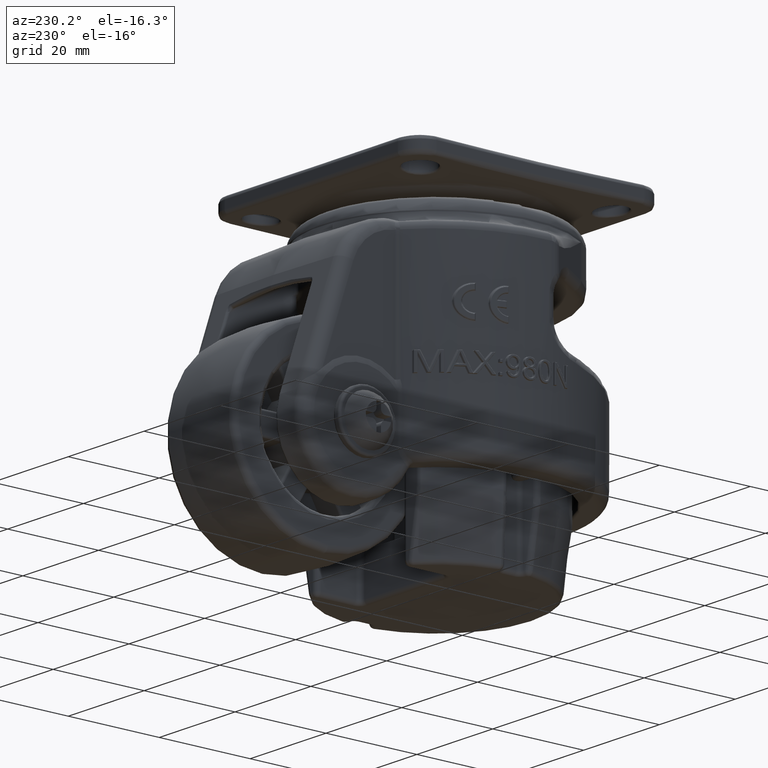
[diagram: clean part render]
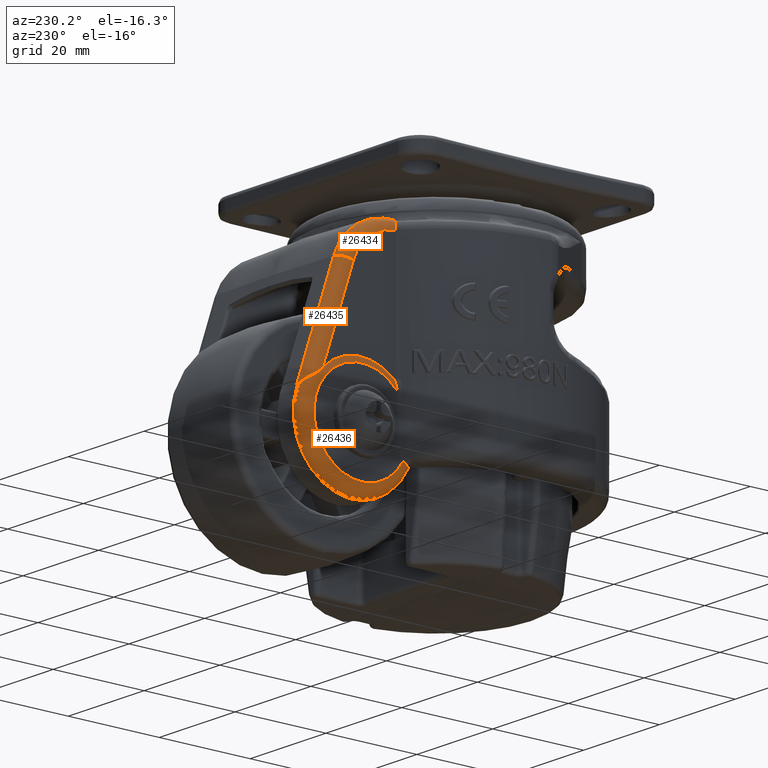
[diagram: same view with one multi-face feature highlighted, each face labeled with its STEP entity id]
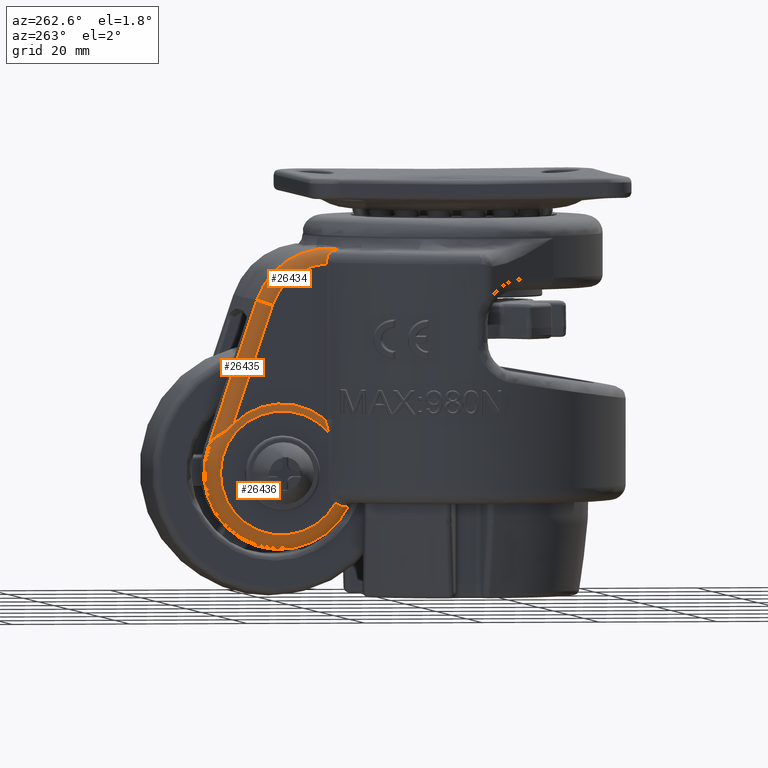
[diagram: same view with one multi-face feature highlighted, each face labeled with its STEP entity id]
A machine part, auxiliary view. The highlighted faces form ONE feature: a constant-radius fillet chain: 3 tangent blend faces with common blend radius 2.5 mm. The faces share edges in the B-rep.
A second angle (auxiliary view) of the same feature is appended — it is thin or edge-on in the first view.
Their STEP definitions:
[1] entity #26436 (Torus):
#808=TOROIDAL_SURFACE('',#28807,10.4876527881421,2.5);
#1341=ELLIPSE('',#28808,7.32003589672251,3.11500899823392);
#2505=B_SPLINE_CURVE_WITH_KNOTS('',3,(#67632,#67633,#67634,#67635,#67636,
#67637,#67638,#67639,#67640,#67641,#67642,#67643,#67644,#67645,#67646,#67647),
 .UNSPECIFIED.,.F.,.F.,(4,2,2,2,2,2,2,4),(2.62298406506864,2.62540183178831,
2.69438704258497,2.80573982525515,2.96957312129336,3.04864523480397,3.09267627405801,
3.12739493921407),.UNSPECIFIED.);
#2506=B_SPLINE_CURVE_WITH_KNOTS('',3,(#67649,#67650,#67651,#67652,#67653,
#67654,#67655,#67656,#67657,#67658,#67659,#67660,#67661),.UNSPECIFIED.,
 .F.,.F.,(4,3,3,3,4),(0.,0.263021618415531,0.525507598075942,0.785289959699708,
1.),.UNSPECIFIED.);
#2507=B_SPLINE_CURVE_WITH_KNOTS('',3,(#67665,#67666,#67667,#67668,#67669,
#67670,#67671,#67672,#67673,#67674),.UNSPECIFIED.,.F.,.F.,(4,3,3,4),(0.,
0.0688259526320415,0.530497821950617,1.),.UNSPECIFIED.);
#2508=B_SPLINE_CURVE_WITH_KNOTS('',3,(#67675,#67676,#67677,#67678,#67679,
#67680,#67681,#67682,#67683,#67684,#67685,#67686,#67687,#67688,#67689,#67690,
#67691,#67692,#67693,#67694,#67695,#67696,#67697,#67698,#67699,#67700,#67701,
#67702,#67703,#67704,#67705,#67706,#67707,#67708,#67709,#67710,#67711,#67712,
#67713,#67714,#67715,#67716,#67717,#67718,#67719,#67720,#67721,#67722,#67723),
 .UNSPECIFIED.,.F.,.F.,(4,3,3,3,3,3,3,3,3,3,3,3,3,3,3,3,4),(0.,0.0713923453421677,
0.143332131950835,0.215827094337618,0.269600432878373,0.288447929116021,
0.30092448128321,0.376129885576939,0.452284679941225,0.528980811998767,
0.60644008331806,0.646013802663653,0.727444843513708,0.809193979855126,
0.890932062540481,0.972500505810279,1.),.UNSPECIFIED.);
#6884=FACE_OUTER_BOUND('',#8597,.T.);
#8597=EDGE_LOOP('',(#14683,#14684,#14685,#14686,#14687,#14688,#14689,#14690));
#14683=ORIENTED_EDGE('',*,*,#20092,.F.);
#14684=ORIENTED_EDGE('',*,*,#20121,.T.);
#14685=ORIENTED_EDGE('',*,*,#20060,.F.);
#14686=ORIENTED_EDGE('',*,*,#20120,.F.);
#14687=ORIENTED_EDGE('',*,*,#20098,.F.);
#14688=ORIENTED_EDGE('',*,*,#20122,.T.);
#14689=ORIENTED_EDGE('',*,*,#20123,.T.);
#14690=ORIENTED_EDGE('',*,*,#20124,.T.);
#20060=EDGE_CURVE('',#23168,#23169,#24740,.T.);
#20092=EDGE_CURVE('',#23196,#23197,#24747,.T.);
#20098=EDGE_CURVE('',#23202,#23203,#24749,.T.);
#20120=EDGE_CURVE('',#23203,#23168,#2505,.T.);
#20121=EDGE_CURVE('',#23196,#23169,#2506,.T.);
#20122=EDGE_CURVE('',#23202,#23219,#1341,.T.);
#20123=EDGE_CURVE('',#23219,#23220,#2507,.T.);
#20124=EDGE_CURVE('',#23220,#23197,#2508,.T.);
#23168=VERTEX_POINT('',#67225);
#23169=VERTEX_POINT('',#67226);
#23196=VERTEX_POINT('',#67402);
#23197=VERTEX_POINT('',#67403);
#23202=VERTEX_POINT('',#67432);
#23203=VERTEX_POINT('',#67443);
#23219=VERTEX_POINT('',#67662);
#23220=VERTEX_POINT('',#67664);
#24740=CIRCLE('',#28774,11.6750869968459);
#24747=CIRCLE('',#28790,10.4876527881421);
#24749=CIRCLE('',#28793,12.986796100581);
#26436=ADVANCED_FACE('',(#6884),#808,.T.);
#28774=AXIS2_PLACEMENT_3D('',#67227,#33813,#33814);
#28790=AXIS2_PLACEMENT_3D('',#67404,#33860,#33861);
#28793=AXIS2_PLACEMENT_3D('',#67444,#33867,#33868);
#28807=AXIS2_PLACEMENT_3D('',#67648,#33905,#33906);
#28808=AXIS2_PLACEMENT_3D('',#67663,#33907,#33908);
#33813=DIRECTION('center_axis',(1.,0.,0.));
#33814=DIRECTION('ref_axis',(0.,0.,-1.));
#33860=DIRECTION('center_axis',(-1.,0.,0.));
#33861=DIRECTION('ref_axis',(0.,0.,-1.));
#33867=DIRECTION('center_axis',(1.,0.,0.));
#33868=DIRECTION('ref_axis',(0.,0.,1.));
#33905=DIRECTION('center_axis',(1.,0.,0.));
#33906=DIRECTION('ref_axis',(0.,0.991057146478216,-0.133438122043352));
#33907=DIRECTION('center_axis',(0.0748446968973447,0.930099643403775,-0.359601063244418));
#33908=DIRECTION('ref_axis',(0.480720535287132,0.28229096034836,0.83019249614704));
#67225=CARTESIAN_POINT('',(-6.6732984111631,32.9414004631349,-22.7100292255762));
#67226=CARTESIAN_POINT('',(-6.67329845169217,17.3694427807741,-21.7393305217223));
#67227=CARTESIAN_POINT('Origin',(-6.6732984111631,24.6150030360456,-30.8940845937956));
#67402=CARTESIAN_POINT('',(-6.9732984111631,16.7417571050433,-23.9656749989042));
#67403=CARTESIAN_POINT('',(-6.9732984111631,15.4428045276084,-35.9795182553872));
#67404=CARTESIAN_POINT('Origin',(-6.9732984111631,24.6150030360456,-30.8940845937956));
#67432=CARTESIAN_POINT('',(-4.53874078193276,12.9436370142948,-36.5893535202281));
#67443=CARTESIAN_POINT('',(-4.53874078193278,36.6933744856178,-26.1223117488012));
#67444=CARTESIAN_POINT('Origin',(-4.53874078193276,24.6150030360456,-30.8940845937956));
#67632=CARTESIAN_POINT('Ctrl Pts',(-4.53874078193276,36.6933744856178,-26.1223117488012));
#67633=CARTESIAN_POINT('Ctrl Pts',(-4.54176153533338,36.6907462640113,-26.1158744420588));
#67634=CARTESIAN_POINT('Ctrl Pts',(-4.54482227493115,36.6881104674077,-26.109450921754));
#67635=CARTESIAN_POINT('Ctrl Pts',(-4.63637825263272,36.6100339849611,-25.9201576049832));
#67636=CARTESIAN_POINT('Ctrl Pts',(-4.75426956387215,36.530053190774,-25.7536220047788));
#67637=CARTESIAN_POINT('Ctrl Pts',(-5.09921420555006,36.2880016521293,-25.3543620559092));
#67638=CARTESIAN_POINT('Ctrl Pts',(-5.35048967738592,36.1059219417405,-25.1425912430851));
#67639=CARTESIAN_POINT('Ctrl Pts',(-5.98259029799215,35.4641797950515,-24.6191946767509));
#67640=CARTESIAN_POINT('Ctrl Pts',(-6.27153524372343,35.0069574774129,-24.3800720968052));
#67641=CARTESIAN_POINT('Ctrl Pts',(-6.53844691048796,34.1984988159915,-23.8268983906551));
#67642=CARTESIAN_POINT('Ctrl Pts',(-6.59218048737017,33.9417976293568,-23.6317799023337));
#67643=CARTESIAN_POINT('Ctrl Pts',(-6.64503913377723,33.5446398303919,-23.2909183080655));
#67644=CARTESIAN_POINT('Ctrl Pts',(-6.65743838660135,33.4043295673264,-23.1629623886292));
#67645=CARTESIAN_POINT('Ctrl Pts',(-6.67060042011582,33.1572779563852,-22.9267989530027));
#67646=CARTESIAN_POINT('Ctrl Pts',(-6.6732984111631,33.048772759982,-22.8192690065875));
#67647=CARTESIAN_POINT('Ctrl Pts',(-6.6732984111631,32.9414004631349,-22.7100292255762));
#67648=CARTESIAN_POINT('Origin',(-4.4732984111631,24.6150030360456,-30.8940845937956));
#67649=CARTESIAN_POINT('Ctrl Pts',(-6.9732984111631,16.7417571050433,-23.9656749989042));
#67650=CARTESIAN_POINT('Ctrl Pts',(-6.97329841116309,16.7747906813799,-23.7616171919339));
#67651=CARTESIAN_POINT('Ctrl Pts',(-6.9660646747803,16.8138876672459,-23.5595278233601));
#67652=CARTESIAN_POINT('Ctrl Pts',(-6.95201335462044,16.8588374993883,-23.359703431489));
#67653=CARTESIAN_POINT('Ctrl Pts',(-6.93799064971923,16.9036957920129,-23.1602859783674));
#67654=CARTESIAN_POINT('Ctrl Pts',(-6.91717752313979,16.9543736096265,-22.9631162896734));
#67655=CARTESIAN_POINT('Ctrl Pts',(-6.88965918294602,17.0106285823867,-22.7684492285111));
#67656=CARTESIAN_POINT('Ctrl Pts',(-6.86242428296107,17.06630412626,-22.5757872473092));
#67657=CARTESIAN_POINT('Ctrl Pts',(-6.82861720714476,17.1274369380578,-22.385568095251));
#67658=CARTESIAN_POINT('Ctrl Pts',(-6.78803728834302,17.1938706716452,-22.1981231214393));
#67659=CARTESIAN_POINT('Ctrl Pts',(-6.75449799819705,17.2487781315925,-22.043199909449));
#67660=CARTESIAN_POINT('Ctrl Pts',(-6.71632483936822,17.307307628008,-21.8901708436959));
#67661=CARTESIAN_POINT('Ctrl Pts',(-6.67329838783339,17.3694429883345,-21.7393308020099));
#67662=CARTESIAN_POINT('',(-4.63607129240608,12.9501953824997,-36.5926481062225));
#67663=CARTESIAN_POINT('Origin',(-1.795129599156,15.1264626134972,-30.3724918718231));
#67664=CARTESIAN_POINT('',(-6.17557799367588,13.743146174721,-36.6863038263022));
#67665=CARTESIAN_POINT('Ctrl Pts',(-4.63607129240608,12.9501953824997,-36.5926481062225));
#67666=CARTESIAN_POINT('Ctrl Pts',(-4.6771854010511,12.953353594132,-36.5930014452756));
#67667=CARTESIAN_POINT('Ctrl Pts',(-4.71822390734771,12.9577094242802,-36.5934889691284));
#67668=CARTESIAN_POINT('Ctrl Pts',(-4.75908243746982,12.963246969276,-36.5941096063453));
#67669=CARTESIAN_POINT('Ctrl Pts',(-5.02835757199567,12.9997417518648,-36.5981998702281));
#67670=CARTESIAN_POINT('Ctrl Pts',(-5.29447160768163,13.0902462648018,-36.6083310737564));
#67671=CARTESIAN_POINT('Ctrl Pts',(-5.53167027598985,13.2220056924344,-36.6236262518031));
#67672=CARTESIAN_POINT('Ctrl Pts',(-5.77336074032736,13.3562602288215,-36.6392110723697));
#67673=CARTESIAN_POINT('Ctrl Pts',(-5.99270271089124,13.536802552594,-36.6606058054014));
#67674=CARTESIAN_POINT('Ctrl Pts',(-6.17557799367588,13.743146174721,-36.6863038263022));
#67675=CARTESIAN_POINT('Ctrl Pts',(-6.17557799367584,13.743146174721,-36.6863038263022));
#67676=CARTESIAN_POINT('Ctrl Pts',(-6.20864227546689,13.7804535871147,-36.6909500882152));
#67677=CARTESIAN_POINT('Ctrl Pts',(-6.24135145446202,13.81848485289,-36.6939774725232));
#67678=CARTESIAN_POINT('Ctrl Pts',(-6.27350070538122,13.8571106488753,-36.6953151823835));
#67679=CARTESIAN_POINT('Ctrl Pts',(-6.30589647890106,13.8960326300408,-36.6966631498922));
#67680=CARTESIAN_POINT('Ctrl Pts',(-6.33772342207643,13.9355583101488,-36.6962954002827));
#67681=CARTESIAN_POINT('Ctrl Pts',(-6.36878389113557,13.9755456333411,-36.6941881047494));
#67682=CARTESIAN_POINT('Ctrl Pts',(-6.40008406093461,14.0158415478472,-36.6920645467348));
#67683=CARTESIAN_POINT('Ctrl Pts',(-6.43060552547958,14.0566062366822,-36.6881745375919));
#67684=CARTESIAN_POINT('Ctrl Pts',(-6.46016293412328,14.0976844988226,-36.6825427538957));
#67685=CARTESIAN_POINT('Ctrl Pts',(-6.48208722360569,14.1281544132003,-36.6783653627873));
#67686=CARTESIAN_POINT('Ctrl Pts',(-6.50348140908306,14.1587966368706,-36.6732306939036));
#67687=CARTESIAN_POINT('Ctrl Pts',(-6.52427761742679,14.1895446090023,-36.6671655955718));
#67688=CARTESIAN_POINT('Ctrl Pts',(-6.5315666656643,14.200321739543,-36.6650397852522));
#67689=CARTESIAN_POINT('Ctrl Pts',(-6.53878231921699,14.2111118383596,-36.6627997967015));
#67690=CARTESIAN_POINT('Ctrl Pts',(-6.54592188115088,14.2219119689097,-36.660447182524));
#67691=CARTESIAN_POINT('Ctrl Pts',(-6.55064808540612,14.2290613743544,-36.6588898131449));
#67692=CARTESIAN_POINT('Ctrl Pts',(-6.55534377463578,14.2362194185952,-36.6572821977546));
#67693=CARTESIAN_POINT('Ctrl Pts',(-6.56001207799714,14.2433915012143,-36.6556231317159));
#67694=CARTESIAN_POINT('Ctrl Pts',(-6.58815139380752,14.2866229457486,-36.6456227140913));
#67695=CARTESIAN_POINT('Ctrl Pts',(-6.61524829475832,14.3302968553699,-36.6337637966704));
#67696=CARTESIAN_POINT('Ctrl Pts',(-6.64111010552835,14.3742414367225,-36.620103323594));
#67697=CARTESIAN_POINT('Ctrl Pts',(-6.66729839478197,14.4187407727444,-36.6062704012419));
#67698=CARTESIAN_POINT('Ctrl Pts',(-6.69221967243686,14.4635174662849,-36.5905903314527));
#67699=CARTESIAN_POINT('Ctrl Pts',(-6.71570472873819,14.5083836114997,-36.5731707944465));
#67700=CARTESIAN_POINT('Ctrl Pts',(-6.73935672589085,14.5535686826043,-36.5556274326429));
#67701=CARTESIAN_POINT('Ctrl Pts',(-6.76155152901431,14.598844177001,-36.5363201335215));
#67702=CARTESIAN_POINT('Ctrl Pts',(-6.78215517299705,14.6440123296702,-36.5154037539748));
#67703=CARTESIAN_POINT('Ctrl Pts',(-6.80296382666199,14.6896299129659,-36.4942792529751));
#67704=CARTESIAN_POINT('Ctrl Pts',(-6.82214909006136,14.7351376153094,-36.4715139295091));
#67705=CARTESIAN_POINT('Ctrl Pts',(-6.83961932230953,14.7803310969492,-36.4473069627606));
#67706=CARTESIAN_POINT('Ctrl Pts',(-6.84854481381127,14.8034203169767,-36.4349396929425));
#67707=CARTESIAN_POINT('Ctrl Pts',(-6.85702343758959,14.8264275475561,-36.4221967248869));
#67708=CARTESIAN_POINT('Ctrl Pts',(-6.86504801941375,14.8493260077179,-36.4091079488884));
#67709=CARTESIAN_POINT('Ctrl Pts',(-6.88156024169493,14.8964442840809,-36.382175108846));
#67710=CARTESIAN_POINT('Ctrl Pts',(-6.8962809785497,14.943484103716,-36.3535573271938));
#67711=CARTESIAN_POINT('Ctrl Pts',(-6.90910947496947,14.9902367357117,-36.3234458246712));
#67712=CARTESIAN_POINT('Ctrl Pts',(-6.92198808356795,15.037171998327,-36.2932166970624));
#67713=CARTESIAN_POINT('Ctrl Pts',(-6.93295949328862,15.0838173228195,-36.261482706852));
#67714=CARTESIAN_POINT('Ctrl Pts',(-6.94197450414941,15.1299710734959,-36.2284675336941));
#67715=CARTESIAN_POINT('Ctrl Pts',(-6.9509882960514,15.1761185835231,-36.1954568246613));
#67716=CARTESIAN_POINT('Ctrl Pts',(-6.95804630478741,15.2217742192283,-36.1611658343153));
#67717=CARTESIAN_POINT('Ctrl Pts',(-6.96315235303762,15.2667530424131,-36.1258399028038));
#67718=CARTESIAN_POINT('Ctrl Pts',(-6.96824780418287,15.3116385164389,-36.0905872868164));
#67719=CARTESIAN_POINT('Ctrl Pts',(-6.97139965242745,15.3558496851794,-36.0543045116493));
#67720=CARTESIAN_POINT('Ctrl Pts',(-6.97266178061443,15.3992248298339,-36.0172491794292));
#67721=CARTESIAN_POINT('Ctrl Pts',(-6.97308728691752,15.4138480651267,-36.004756567676));
#67722=CARTESIAN_POINT('Ctrl Pts',(-6.9732984111631,15.4283764826619,-35.9921762315711));
#67723=CARTESIAN_POINT('Ctrl Pts',(-6.9732984111631,15.4428045276084,-35.9795182553872));
[2] entity #26435 (Cylinder):
#2500=B_SPLINE_CURVE_WITH_KNOTS('',3,(#67445,#67446,#67447,#67448,#67449,
#67450,#67451),.UNSPECIFIED.,.F.,.F.,(4,3,4),(0.,0.504752494202908,1.),
 .UNSPECIFIED.);
#2505=B_SPLINE_CURVE_WITH_KNOTS('',3,(#67632,#67633,#67634,#67635,#67636,
#67637,#67638,#67639,#67640,#67641,#67642,#67643,#67644,#67645,#67646,#67647),
 .UNSPECIFIED.,.F.,.F.,(4,2,2,2,2,2,2,4),(2.62298406506864,2.62540183178831,
2.69438704258497,2.80573982525515,2.96957312129336,3.04864523480397,3.09267627405801,
3.12739493921407),.UNSPECIFIED.);
#3811=LINE('',#67241,#4775);
#3822=LINE('',#67356,#4786);
#4775=VECTOR('',#33818,21.2603998477585);
#4786=VECTOR('',#33851,26.3742981997066);
#5327=CYLINDRICAL_SURFACE('',#28806,2.5);
#6883=FACE_OUTER_BOUND('',#8596,.T.);
#8596=EDGE_LOOP('',(#14678,#14679,#14680,#14681,#14682));
#14678=ORIENTED_EDGE('',*,*,#20119,.T.);
#14679=ORIENTED_EDGE('',*,*,#20086,.F.);
#14680=ORIENTED_EDGE('',*,*,#20099,.F.);
#14681=ORIENTED_EDGE('',*,*,#20120,.T.);
#14682=ORIENTED_EDGE('',*,*,#20064,.F.);
#20064=EDGE_CURVE('',#23172,#23168,#3811,.T.);
#20086=EDGE_CURVE('',#23192,#23193,#3822,.T.);
#20099=EDGE_CURVE('',#23203,#23192,#2500,.T.);
#20119=EDGE_CURVE('',#23172,#23193,#24753,.T.);
#20120=EDGE_CURVE('',#23203,#23168,#2505,.T.);
#23168=VERTEX_POINT('',#67225);
#23172=VERTEX_POINT('',#67239);
#23192=VERTEX_POINT('',#67353);
#23193=VERTEX_POINT('',#67355);
#23203=VERTEX_POINT('',#67443);
#24753=CIRCLE('',#28805,2.5);
#26435=ADVANCED_FACE('',(#6883),#5327,.T.);
#28805=AXIS2_PLACEMENT_3D('',#67630,#33901,#33902);
#28806=AXIS2_PLACEMENT_3D('',#67631,#33903,#33904);
#33818=DIRECTION('',(0.,0.317777256828142,-0.948165394349942));
#33851=DIRECTION('',(-5.94446409531362E-22,-0.317777256828142,0.948165394349942));
#33901=DIRECTION('center_axis',(0.,0.317777256828142,-0.948165394349942));
#33902=DIRECTION('ref_axis',(0.,0.948165394349942,0.317777256828142));
#33903=DIRECTION('center_axis',(0.,-0.317777256828142,0.948165394349942));
#33904=DIRECTION('ref_axis',(0.,-0.948165394349942,-0.317777256828142));
#67225=CARTESIAN_POINT('',(-6.6732984111631,32.9414004631349,-22.7100292255762));
#67239=CARTESIAN_POINT('',(-6.6732984111631,26.1853289204448,-2.55165381988885));
#67241=CARTESIAN_POINT('',(-6.6732984111631,25.8262109865619,-1.48013850505189));
#67353=CARTESIAN_POINT('',(-4.23874078193278,36.9360822574906,-26.7646797668694));
#67355=CARTESIAN_POINT('',(-4.23874078193278,28.5549301248205,-1.75748291364163));
#67356=CARTESIAN_POINT('',(-4.23874078193278,26.8233282104107,3.40917069908479));
#67443=CARTESIAN_POINT('',(-4.53874078193278,36.6933744856178,-26.1223117488012));
#67445=CARTESIAN_POINT('Ctrl Pts',(-4.53874078193276,36.6933744856178,-26.1223117488012));
#67446=CARTESIAN_POINT('Ctrl Pts',(-4.48852548122426,36.7370645591844,-26.2293219051944));
#67447=CARTESIAN_POINT('Ctrl Pts',(-4.43799138874231,36.7794398085257,-26.337192301853));
#67448=CARTESIAN_POINT('Ctrl Pts',(-4.38742208744593,36.8203035840251,-26.4454392427187));
#67449=CARTESIAN_POINT('Ctrl Pts',(-4.33780505607992,36.8603978542387,-26.5516477866874));
#67450=CARTESIAN_POINT('Ctrl Pts',(-4.28815460065304,36.8990372114972,-26.658218767743));
#67451=CARTESIAN_POINT('Ctrl Pts',(-4.23874078193278,36.9360822574906,-26.7646797668694));
#67630=CARTESIAN_POINT('Origin',(-4.1732984111631,26.1853289204448,-2.55165381988885));
#67631=CARTESIAN_POINT('Origin',(-4.1732984111631,25.8262109865619,-1.48013850505189));
#67632=CARTESIAN_POINT('Ctrl Pts',(-4.53874078193276,36.6933744856178,-26.1223117488012));
#67633=CARTESIAN_POINT('Ctrl Pts',(-4.54176153533338,36.6907462640113,-26.1158744420588));
#67634=CARTESIAN_POINT('Ctrl Pts',(-4.54482227493115,36.6881104674077,-26.109450921754));
#67635=CARTESIAN_POINT('Ctrl Pts',(-4.63637825263272,36.6100339849611,-25.9201576049832));
#67636=CARTESIAN_POINT('Ctrl Pts',(-4.75426956387215,36.530053190774,-25.7536220047788));
#67637=CARTESIAN_POINT('Ctrl Pts',(-5.09921420555006,36.2880016521293,-25.3543620559092));
#67638=CARTESIAN_POINT('Ctrl Pts',(-5.35048967738592,36.1059219417405,-25.1425912430851));
#67639=CARTESIAN_POINT('Ctrl Pts',(-5.98259029799215,35.4641797950515,-24.6191946767509));
#67640=CARTESIAN_POINT('Ctrl Pts',(-6.27153524372343,35.0069574774129,-24.3800720968052));
#67641=CARTESIAN_POINT('Ctrl Pts',(-6.53844691048796,34.1984988159915,-23.8268983906551));
#67642=CARTESIAN_POINT('Ctrl Pts',(-6.59218048737017,33.9417976293568,-23.6317799023337));
#67643=CARTESIAN_POINT('Ctrl Pts',(-6.64503913377723,33.5446398303919,-23.2909183080655));
#67644=CARTESIAN_POINT('Ctrl Pts',(-6.65743838660135,33.4043295673264,-23.1629623886292));
#67645=CARTESIAN_POINT('Ctrl Pts',(-6.67060042011582,33.1572779563852,-22.9267989530027));
#67646=CARTESIAN_POINT('Ctrl Pts',(-6.6732984111631,33.048772759982,-22.8192690065875));
#67647=CARTESIAN_POINT('Ctrl Pts',(-6.6732984111631,32.9414004631349,-22.7100292255762));
[3] entity #26434 (Torus):
#807=TOROIDAL_SURFACE('',#28803,10.2696156405994,2.5);
#2503=B_SPLINE_CURVE_WITH_KNOTS('',3,(#67592,#67593,#67594,#67595,#67596,
#67597,#67598,#67599,#67600,#67601,#67602,#67603,#67604,#67605,#67606,#67607),
 .UNSPECIFIED.,.F.,.F.,(4,3,3,3,3,4),(0.,0.200821826464369,0.406158303396847,
0.626878103218087,0.817255075358532,1.),.UNSPECIFIED.);
#2504=B_SPLINE_CURVE_WITH_KNOTS('',3,(#67608,#67609,#67610,#67611,#67612,
#67613,#67614,#67615,#67616,#67617,#67618,#67619,#67620,#67621,#67622,#67623,
#67624,#67625,#67626,#67627,#67628,#67629),.UNSPECIFIED.,.F.,.F.,(4,3,3,
3,3,3,3,4),(0.,0.100673249905794,0.181323915829313,0.194834026222944,0.281066858740336,
0.415172328830206,0.549932100668958,1.),.UNSPECIFIED.);
#6882=FACE_OUTER_BOUND('',#8595,.T.);
#8595=EDGE_LOOP('',(#14672,#14673,#14674,#14675,#14676,#14677));
#14672=ORIENTED_EDGE('',*,*,#20063,.F.);
#14673=ORIENTED_EDGE('',*,*,#20116,.T.);
#14674=ORIENTED_EDGE('',*,*,#20117,.T.);
#14675=ORIENTED_EDGE('',*,*,#20118,.T.);
#14676=ORIENTED_EDGE('',*,*,#20090,.F.);
#14677=ORIENTED_EDGE('',*,*,#20119,.F.);
#20063=EDGE_CURVE('',#23171,#23172,#24741,.T.);
#20090=EDGE_CURVE('',#23193,#23195,#24746,.T.);
#20116=EDGE_CURVE('',#23171,#23217,#24752,.T.);
#20117=EDGE_CURVE('',#23217,#23218,#2503,.T.);
#20118=EDGE_CURVE('',#23218,#23195,#2504,.T.);
#20119=EDGE_CURVE('',#23172,#23193,#24753,.T.);
#23171=VERTEX_POINT('',#67237);
#23172=VERTEX_POINT('',#67239);
#23193=VERTEX_POINT('',#67355);
#23195=VERTEX_POINT('',#67365);
#23217=VERTEX_POINT('',#67589);
#23218=VERTEX_POINT('',#67591);
#24741=CIRCLE('',#28775,10.2696156405994);
#24746=CIRCLE('',#28788,12.7687589530383);
#24752=CIRCLE('',#28804,1.67808800859409);
#24753=CIRCLE('',#28805,2.5);
#26434=ADVANCED_FACE('',(#6882),#807,.T.);
#28775=AXIS2_PLACEMENT_3D('',#67240,#33816,#33817);
#28788=AXIS2_PLACEMENT_3D('',#67366,#33856,#33857);
#28803=AXIS2_PLACEMENT_3D('',#67588,#33897,#33898);
#28804=AXIS2_PLACEMENT_3D('',#67590,#33899,#33900);
#28805=AXIS2_PLACEMENT_3D('',#67630,#33901,#33902);
#33816=DIRECTION('center_axis',(-1.,0.,0.));
#33817=DIRECTION('ref_axis',(0.,0.,-1.));
#33856=DIRECTION('center_axis',(1.,0.,0.));
#33857=DIRECTION('ref_axis',(0.,0.,1.));
#33897=DIRECTION('center_axis',(1.,0.,0.));
#33898=DIRECTION('ref_axis',(0.,0.534066842228005,0.845442255883042));
#33899=DIRECTION('center_axis',(-0.741488370534295,0.670823016605393,0.0138375125957336));
#33900=DIRECTION('ref_axis',(-0.669099592576701,-0.740805899797838,0.0592651165392264));
#33901=DIRECTION('center_axis',(0.,0.317777256828142,-0.948165394349942));
#33902=DIRECTION('ref_axis',(0.,0.948165394349942,0.317777256828142));
#67237=CARTESIAN_POINT('',(-6.6732984111631,16.9807878186695,4.44068350702765));
#67239=CARTESIAN_POINT('',(-6.6732984111631,26.1853289204448,-2.55165381988885));
#67240=CARTESIAN_POINT('Origin',(-6.6732984111631,16.4480347567526,-5.81510410683514));
#67355=CARTESIAN_POINT('',(-4.23874078193278,28.5549301248205,-1.75748291364163));
#67365=CARTESIAN_POINT('',(-4.23874078193274,15.2262065805529,6.89506273347972));
#67366=CARTESIAN_POINT('Origin',(-4.23874078193274,16.4480347567526,-5.81510410683514));
#67588=CARTESIAN_POINT('Origin',(-4.1732984111631,16.4480347567526,-5.81510410683514));
#67589=CARTESIAN_POINT('',(-6.67016688840529,16.9816663743802,4.56589620713435));
#67590=CARTESIAN_POINT('Origin',(-5.54735888554714,18.2248038715267,4.46644412574194));
#67591=CARTESIAN_POINT('',(-5.13674893744788,15.1467001246568,6.69389825633852));
#67592=CARTESIAN_POINT('Ctrl Pts',(-6.67016688840529,16.9816663743802,4.56589620713435));
#67593=CARTESIAN_POINT('Ctrl Pts',(-6.65827677182646,16.9898983629712,4.80311771298087));
#67594=CARTESIAN_POINT('Ctrl Pts',(-6.61080590877987,16.9646431153139,5.04339551251637));
#67595=CARTESIAN_POINT('Ctrl Pts',(-6.53576183032314,16.9116941721771,5.2625940048784));
#67596=CARTESIAN_POINT('Ctrl Pts',(-6.4588797248995,16.8574483700827,5.48716124515971));
#67597=CARTESIAN_POINT('Ctrl Pts',(-6.35110975745564,16.7728414711187,5.69712276223134));
#67598=CARTESIAN_POINT('Ctrl Pts',(-6.2275192911208,16.6654470555441,5.87733304695822));
#67599=CARTESIAN_POINT('Ctrl Pts',(-6.094699879089,16.5500331117739,6.07100028335055));
#67600=CARTESIAN_POINT('Ctrl Pts',(-5.9394740850928,16.4051129437711,6.23640359567135));
#67601=CARTESIAN_POINT('Ctrl Pts',(-5.7853094849157,16.236179536486,6.36353798533909));
#67602=CARTESIAN_POINT('Ctrl Pts',(-5.65201005591222,16.0901101619029,6.47346556618415));
#67603=CARTESIAN_POINT('Ctrl Pts',(-5.51620274242018,15.9219321281945,6.55755376734093));
#67604=CARTESIAN_POINT('Ctrl Pts',(-5.40064218791908,15.7352168000505,6.61207181456989));
#67605=CARTESIAN_POINT('Ctrl Pts',(-5.28995197509731,15.5563706574495,6.66429217883219));
#67606=CARTESIAN_POINT('Ctrl Pts',(-5.19704444215126,15.3548256754983,6.69023225293255));
#67607=CARTESIAN_POINT('Ctrl Pts',(-5.13674893744788,15.1467001246568,6.69389825633852));
#67608=CARTESIAN_POINT('Ctrl Pts',(-5.13674893744788,15.1467001246568,6.69389825633852));
#67609=CARTESIAN_POINT('Ctrl Pts',(-5.12641048788781,15.1110142883827,6.69452684036897));
#67610=CARTESIAN_POINT('Ctrl Pts',(-5.1117546470288,15.0759624777491,6.69681638371708));
#67611=CARTESIAN_POINT('Ctrl Pts',(-5.09171334805599,15.0449962989256,6.70131078827407));
#67612=CARTESIAN_POINT('Ctrl Pts',(-5.07565763051877,15.0201883151181,6.70491139770377));
#67613=CARTESIAN_POINT('Ctrl Pts',(-5.05564874048357,14.9975550945461,6.71005849731201));
#67614=CARTESIAN_POINT('Ctrl Pts',(-5.03270498001307,14.9796865560942,6.71642133500907));
#67615=CARTESIAN_POINT('Ctrl Pts',(-5.02880246711452,14.9766472896289,6.71750359248016));
#67616=CARTESIAN_POINT('Ctrl Pts',(-5.02480944961311,14.9737328694071,6.71862170733885));
#67617=CARTESIAN_POINT('Ctrl Pts',(-5.02073709293128,14.9709522352615,6.7197714958451));
#67618=CARTESIAN_POINT('Ctrl Pts',(-4.99520099073986,14.9535160028182,6.72698135467817));
#67619=CARTESIAN_POINT('Ctrl Pts',(-4.96595837177511,14.9413443608328,6.73561492750034));
#67620=CARTESIAN_POINT('Ctrl Pts',(-4.93619719584048,14.9346384705894,6.74441266723118));
#67621=CARTESIAN_POINT('Ctrl Pts',(-4.89018745099832,14.9242713970665,6.75801366744341));
#67622=CARTESIAN_POINT('Ctrl Pts',(-4.84139878385785,14.9259567126171,6.77238026257367));
#67623=CARTESIAN_POINT('Ctrl Pts',(-4.79476292119901,14.9340108675843,6.78540281771749));
#67624=CARTESIAN_POINT('Ctrl Pts',(-4.747523463939,14.9421692651702,6.79859392005931));
#67625=CARTESIAN_POINT('Ctrl Pts',(-4.70104079108526,14.9568503946721,6.81086689432816));
#67626=CARTESIAN_POINT('Ctrl Pts',(-4.65600459216865,14.9748091422065,6.82188302470695));
#67627=CARTESIAN_POINT('Ctrl Pts',(-4.50727125083145,15.034118422103,6.85826411190475));
#67628=CARTESIAN_POINT('Ctrl Pts',(-4.36906128703118,15.1271528777341,6.88211240832447));
#67629=CARTESIAN_POINT('Ctrl Pts',(-4.23874078193274,15.2262065805529,6.89506273347972));
#67630=CARTESIAN_POINT('Origin',(-4.1732984111631,26.1853289204448,-2.55165381988885));